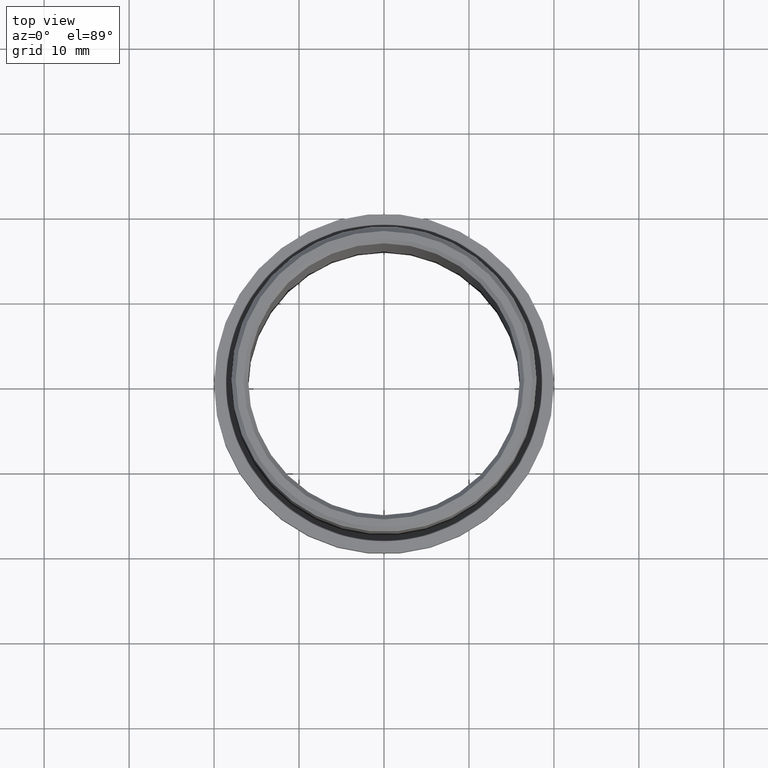
[diagram: clean part render]
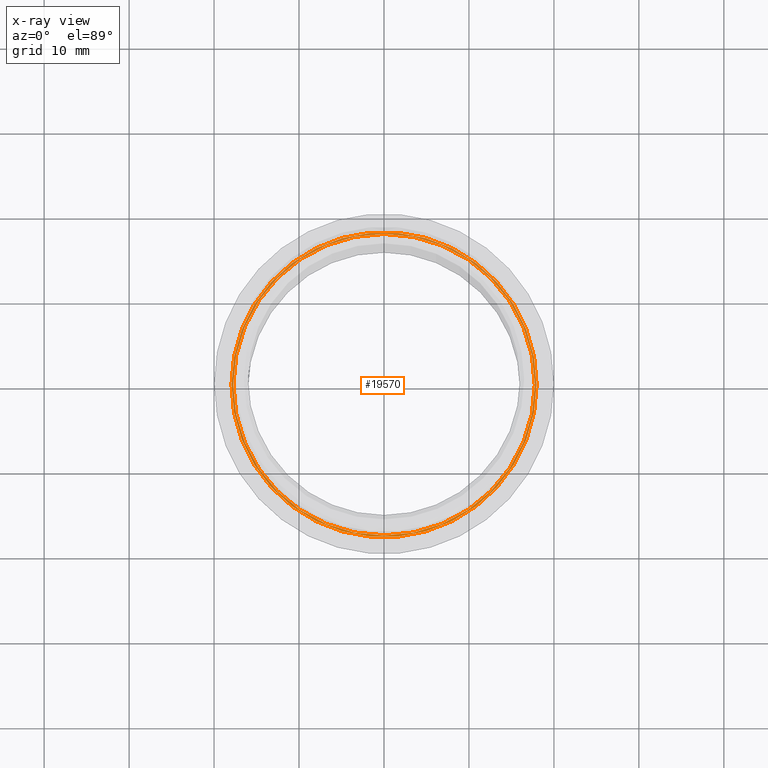
[diagram: x-ray — body ghosted, one internal face saturated and labeled with its STEP entity id]
A machine part, top view, then the same camera in x-ray: the body is ghosted and one INTERNAL B-rep face — a face not visible from any outside direction — is saturated and labeled: STEP entity #19570.
In plain terms, the highlighted planar face has unit normal (0, 0, -1).
Its self-contained STEP definition (entity closure, byte-faithful):
#44 = DIRECTION ( 'NONE',  ( -0.0000000000000000000, -0.0000000000000000000, 1.000000000000000000 ) ) ;
#279 = FACE_BOUND ( 'NONE', #9964, .T. ) ;
#804 = CARTESIAN_POINT ( 'NONE',  ( 17.94999999999999900, -2.198241004469499100E-015, -5.500000000000000000 ) ) ;
#1095 = ORIENTED_EDGE ( 'NONE', *, *, #14220, .F. ) ;
#1096 = VERTEX_POINT ( 'NONE', #804 ) ;
#2374 = AXIS2_PLACEMENT_3D ( 'NONE', #3144, #44, #15033 ) ;
#3048 = CARTESIAN_POINT ( 'NONE',  ( -17.75000000000000400, 0.0000000000000000000, -5.500000000000000000 ) ) ;
#3127 = DIRECTION ( 'NONE',  ( 1.000000000000000000, 0.0000000000000000000, 0.0000000000000000000 ) ) ;
#3144 = CARTESIAN_POINT ( 'NONE',  ( 0.0000000000000000000, 0.0000000000000000000, -5.500000000000000000 ) ) ;
#3201 = DIRECTION ( 'NONE',  ( 0.0000000000000000000, 0.0000000000000000000, -1.000000000000000000 ) ) ;
#3735 = VERTEX_POINT ( 'NONE', #3048 ) ;
#5802 = EDGE_LOOP ( 'NONE', ( #14322, #9061 ) ) ;
#6286 = AXIS2_PLACEMENT_3D ( 'NONE', #16829, #20403, #13494 ) ;
#6359 = ORIENTED_EDGE ( 'NONE', *, *, #12303, .F. ) ;
#6694 = CARTESIAN_POINT ( 'NONE',  ( 0.0000000000000000000, 0.0000000000000000000, -5.500000000000000000 ) ) ;
#6921 = DIRECTION ( 'NONE',  ( 1.000000000000000000, 0.0000000000000000000, 0.0000000000000000000 ) ) ;
#7057 = CIRCLE ( 'NONE', #15082, 17.75000000000000400 ) ;
#7167 = AXIS2_PLACEMENT_3D ( 'NONE', #19016, #10697, #7282 ) ;
#7282 = DIRECTION ( 'NONE',  ( 1.000000000000000000, 0.0000000000000000000, 0.0000000000000000000 ) ) ;
#8030 = EDGE_CURVE ( 'NONE', #1096, #8881, #19220, .T. ) ;
#8881 = VERTEX_POINT ( 'NONE', #16162 ) ;
#9061 = ORIENTED_EDGE ( 'NONE', *, *, #8030, .T. ) ;
#9964 = EDGE_LOOP ( 'NONE', ( #6359, #1095 ) ) ;
#10186 = PLANE ( 'NONE',  #12452 ) ;
#10697 = DIRECTION ( 'NONE',  ( -0.0000000000000000000, -0.0000000000000000000, 1.000000000000000000 ) ) ;
#12228 = FACE_OUTER_BOUND ( 'NONE', #5802, .T. ) ;
#12269 = CARTESIAN_POINT ( 'NONE',  ( 0.0000000000000000000, 0.0000000000000000000, -5.500000000000000000 ) ) ;
#12303 = EDGE_CURVE ( 'NONE', #3735, #20721, #20095, .T. ) ;
#12452 = AXIS2_PLACEMENT_3D ( 'NONE', #6694, #3201, #3127 ) ;
#13494 = DIRECTION ( 'NONE',  ( 1.000000000000000000, 0.0000000000000000000, 0.0000000000000000000 ) ) ;
#13651 = CARTESIAN_POINT ( 'NONE',  ( 17.75000000000000400, -2.173748068486552000E-015, -5.500000000000000000 ) ) ;
#14220 = EDGE_CURVE ( 'NONE', #20721, #3735, #7057, .T. ) ;
#14322 = ORIENTED_EDGE ( 'NONE', *, *, #18550, .T. ) ;
#15033 = DIRECTION ( 'NONE',  ( 1.000000000000000000, 0.0000000000000000000, 0.0000000000000000000 ) ) ;
#15082 = AXIS2_PLACEMENT_3D ( 'NONE', #12269, #17398, #6921 ) ;
#16162 = CARTESIAN_POINT ( 'NONE',  ( -17.94999999999999900, 0.0000000000000000000, -5.500000000000000000 ) ) ;
#16829 = CARTESIAN_POINT ( 'NONE',  ( 0.0000000000000000000, 0.0000000000000000000, -5.500000000000000000 ) ) ;
#17398 = DIRECTION ( 'NONE',  ( -0.0000000000000000000, -0.0000000000000000000, 1.000000000000000000 ) ) ;
#18373 = CIRCLE ( 'NONE', #6286, 17.94999999999999900 ) ;
#18550 = EDGE_CURVE ( 'NONE', #8881, #1096, #18373, .T. ) ;
#19016 = CARTESIAN_POINT ( 'NONE',  ( 0.0000000000000000000, 0.0000000000000000000, -5.500000000000000000 ) ) ;
#19220 = CIRCLE ( 'NONE', #7167, 17.94999999999999900 ) ;
#19570 = ADVANCED_FACE ( 'NONE', ( #279, #12228 ), #10186, .F. ) ;
#20095 = CIRCLE ( 'NONE', #2374, 17.75000000000000400 ) ;
#20403 = DIRECTION ( 'NONE',  ( -0.0000000000000000000, -0.0000000000000000000, 1.000000000000000000 ) ) ;
#20721 = VERTEX_POINT ( 'NONE', #13651 ) ;